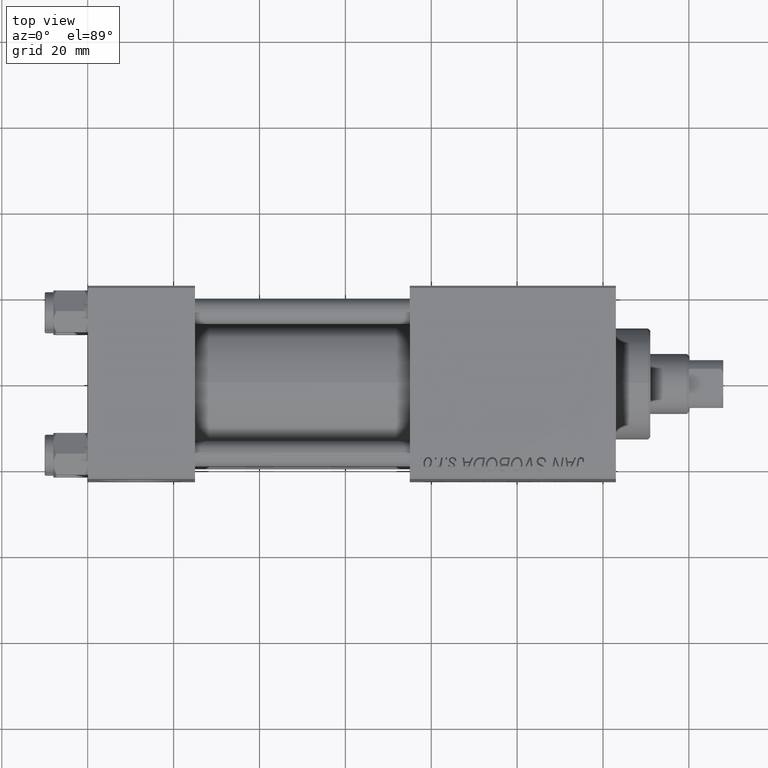
[diagram: clean part render]
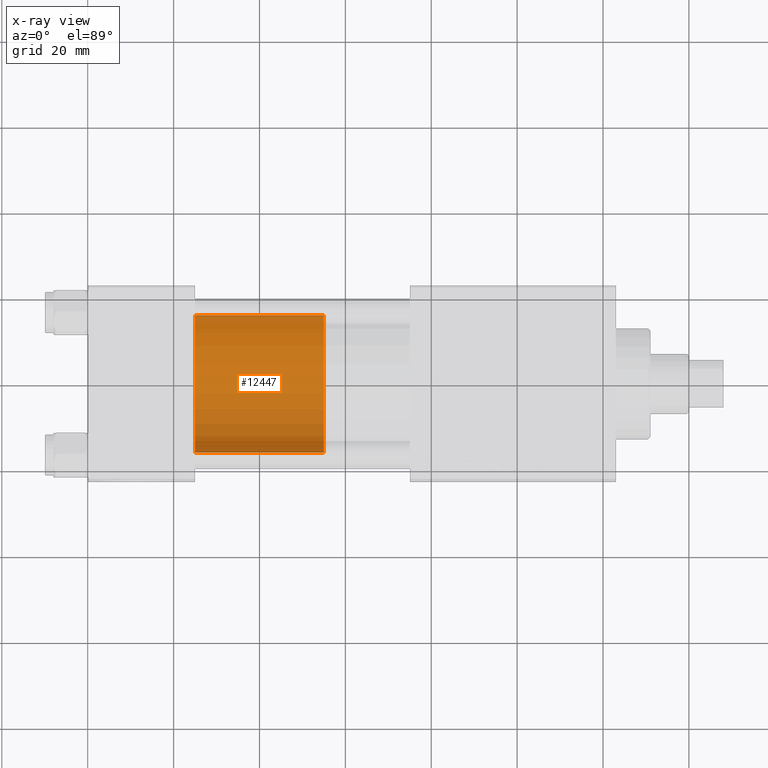
[diagram: x-ray — body ghosted, one internal face saturated and labeled with its STEP entity id]
A machine part, top view, then the same camera in x-ray: the body is ghosted and one INTERNAL B-rep face — a face not visible from any outside direction — is saturated and labeled: STEP entity #12447.
In plain terms, the highlighted cylindrical surface (partial cylindrical patch) has radius 16 mm, axis along (-1, 0, 0).
Its self-contained STEP definition (entity closure, byte-faithful):
#946 = VERTEX_POINT ( 'NONE', #45942 ) ;
#1970 = CYLINDRICAL_SURFACE ( 'NONE', #50309, 16.00000000000000000 ) ;
#2048 = CARTESIAN_POINT ( 'NONE',  ( 0.000000000000000000, 0.000000000000000000, 0.000000000000000000 ) ) ;
#2934 = EDGE_LOOP ( 'NONE', ( #19233, #29435, #5628, #34886 ) ) ;
#3340 = LINE ( 'NONE', #3587, #9762 ) ;
#3403 = DIRECTION ( 'NONE',  ( -0.000000000000000000, -0.000000000000000000, -1.000000000000000000 ) ) ;
#3587 = CARTESIAN_POINT ( 'NONE',  ( 16.00000000000000000, 1.959434878635765131E-15, 30.00000000000000000 ) ) ;
#5628 = ORIENTED_EDGE ( 'NONE', *, *, #45074, .T. ) ;
#6210 = EDGE_CURVE ( 'NONE', #26146, #946, #41342, .T. ) ;
#6587 = CARTESIAN_POINT ( 'NONE',  ( 0.000000000000000000, 0.000000000000000000, 30.00000000000000000 ) ) ;
#9762 = VECTOR ( 'NONE', #46366, 1000.000000000000000 ) ;
#10051 = CARTESIAN_POINT ( 'NONE',  ( -16.00000000000000000, 0.000000000000000000, 30.00000000000000000 ) ) ;
#11470 = EDGE_CURVE ( 'NONE', #31371, #26146, #17830, .T. ) ;
#12391 = CIRCLE ( 'NONE', #40821, 16.00000000000000000 ) ;
#12447 = ADVANCED_FACE ( 'NONE', ( #25634 ), #1970, .T. ) ;
#13487 = DIRECTION ( 'NONE',  ( 0.000000000000000000, 0.000000000000000000, 1.000000000000000000 ) ) ;
#17830 = CIRCLE ( 'NONE', #34065, 16.00000000000000000 ) ;
#18195 = CARTESIAN_POINT ( 'NONE',  ( -16.00000000000000000, 0.000000000000000000, 30.00000000000000000 ) ) ;
#19233 = ORIENTED_EDGE ( 'NONE', *, *, #11470, .F. ) ;
#21626 = DIRECTION ( 'NONE',  ( 1.000000000000000000, 0.000000000000000000, 0.000000000000000000 ) ) ;
#25133 = CARTESIAN_POINT ( 'NONE',  ( 16.00000000000000000, 1.959434878635765131E-15, 0.000000000000000000 ) ) ;
#25634 = FACE_OUTER_BOUND ( 'NONE', #2934, .T. ) ;
#26146 = VERTEX_POINT ( 'NONE', #10051 ) ;
#29435 = ORIENTED_EDGE ( 'NONE', *, *, #40032, .T. ) ;
#31371 = VERTEX_POINT ( 'NONE', #43962 ) ;
#34065 = AXIS2_PLACEMENT_3D ( 'NONE', #6587, #13487, #21626 ) ;
#34886 = ORIENTED_EDGE ( 'NONE', *, *, #6210, .F. ) ;
#40032 = EDGE_CURVE ( 'NONE', #31371, #40513, #3340, .T. ) ;
#40513 = VERTEX_POINT ( 'NONE', #25133 ) ;
#40661 = DIRECTION ( 'NONE',  ( -1.000000000000000000, 0.000000000000000000, 0.000000000000000000 ) ) ;
#40821 = AXIS2_PLACEMENT_3D ( 'NONE', #2048, #44572, #48876 ) ;
#41160 = CARTESIAN_POINT ( 'NONE',  ( 0.000000000000000000, 0.000000000000000000, 30.00000000000000000 ) ) ;
#41342 = LINE ( 'NONE', #18195, #46071 ) ;
#41415 = DIRECTION ( 'NONE',  ( -0.000000000000000000, -0.000000000000000000, -1.000000000000000000 ) ) ;
#43962 = CARTESIAN_POINT ( 'NONE',  ( 16.00000000000000000, 1.959434878635765131E-15, 30.00000000000000000 ) ) ;
#44572 = DIRECTION ( 'NONE',  ( 0.000000000000000000, 0.000000000000000000, 1.000000000000000000 ) ) ;
#45074 = EDGE_CURVE ( 'NONE', #40513, #946, #12391, .T. ) ;
#45942 = CARTESIAN_POINT ( 'NONE',  ( -16.00000000000000000, 0.000000000000000000, 0.000000000000000000 ) ) ;
#46071 = VECTOR ( 'NONE', #3403, 1000.000000000000000 ) ;
#46366 = DIRECTION ( 'NONE',  ( -0.000000000000000000, -0.000000000000000000, -1.000000000000000000 ) ) ;
#48876 = DIRECTION ( 'NONE',  ( 1.000000000000000000, 0.000000000000000000, 0.000000000000000000 ) ) ;
#50309 = AXIS2_PLACEMENT_3D ( 'NONE', #41160, #41415, #40661 ) ;